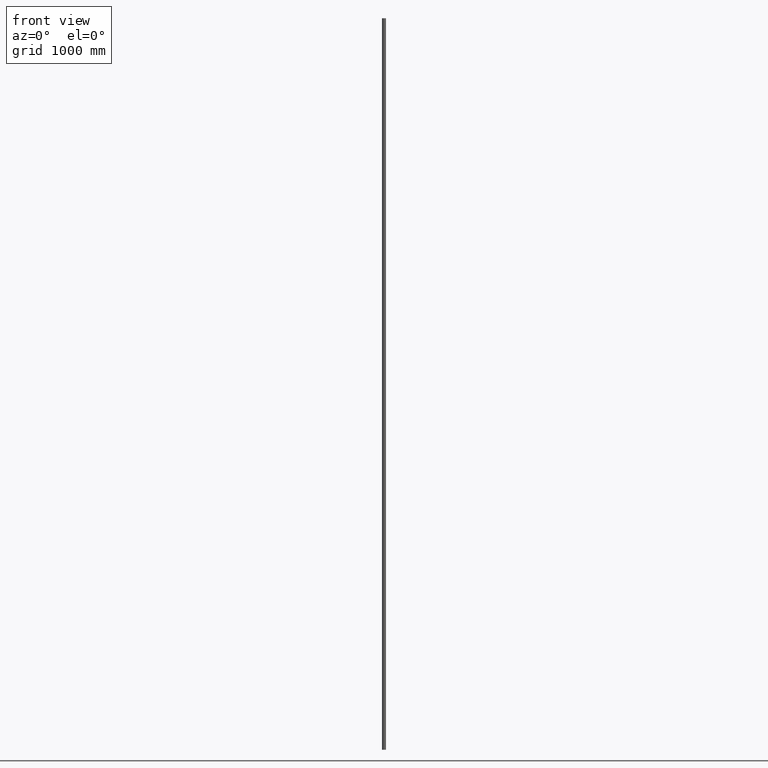
[diagram: clean part render]
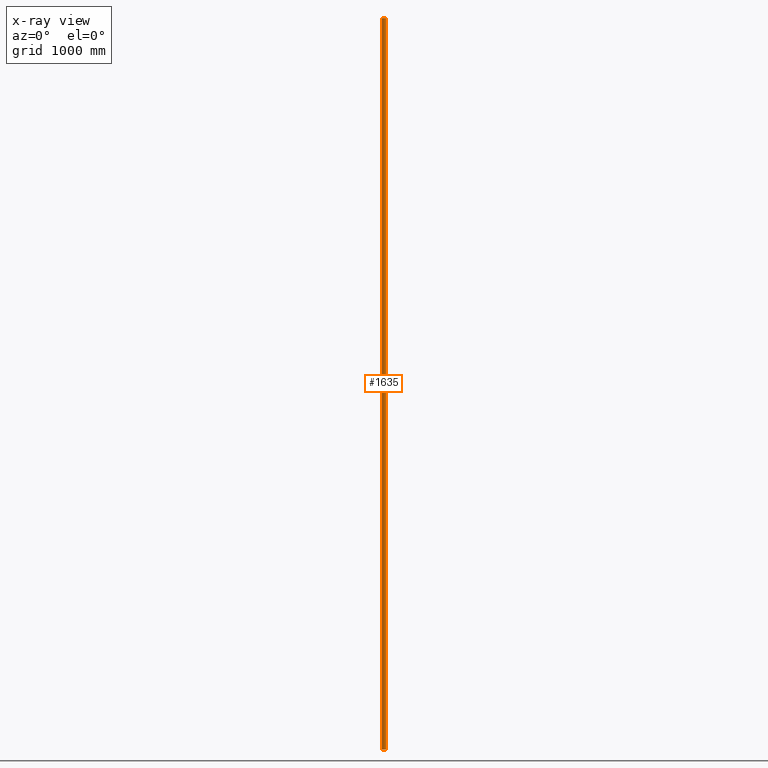
[diagram: x-ray — body ghosted, one internal face saturated and labeled with its STEP entity id]
A machine part, front view, then the same camera in x-ray: the body is ghosted and one INTERNAL B-rep face — a face not visible from any outside direction — is saturated and labeled: STEP entity #1635.
In plain terms, the highlighted cylindrical surface (bore or boss wall) has radius 16.85 mm, axis along (-0, -0, -1).
Its self-contained STEP definition (entity closure, byte-faithful):
#122 = FACE_OUTER_BOUND ( 'NONE', #9750, .T. ) ;
#188 = DIRECTION ( 'NONE',  ( 1.000000000000000000, 0.000000000000000000, 0.000000000000000000 ) ) ;
#461 = CARTESIAN_POINT ( 'NONE',  ( 0.000000000000000000, 0.000000000000000000, 3000.000000000000000 ) ) ;
#500 = CIRCLE ( 'NONE', #2122, 16.85000000000000142 ) ;
#745 = EDGE_LOOP ( 'NONE', ( #4089 ) ) ;
#1363 = ORIENTED_EDGE ( 'NONE', *, *, #5883, .F. ) ;
#1635 = ADVANCED_FACE ( 'NONE', ( #122, #12389 ), #4280, .T. ) ;
#2122 = AXIS2_PLACEMENT_3D ( 'NONE', #3315, #12118, #7174 ) ;
#2277 = CARTESIAN_POINT ( 'NONE',  ( 0.000000000000000000, 0.000000000000000000, 3000.000000000000000 ) ) ;
#3315 = CARTESIAN_POINT ( 'NONE',  ( 0.000000000000000000, 0.000000000000000000, -3000.000000000000000 ) ) ;
#3438 = DIRECTION ( 'NONE',  ( -1.000000000000000000, 0.000000000000000000, 0.000000000000000000 ) ) ;
#3836 = VERTEX_POINT ( 'NONE', #8060 ) ;
#4089 = ORIENTED_EDGE ( 'NONE', *, *, #9473, .T. ) ;
#4280 = CYLINDRICAL_SURFACE ( 'NONE', #4966, 16.85000000000000142 ) ;
#4966 = AXIS2_PLACEMENT_3D ( 'NONE', #461, #10303, #3438 ) ;
#5883 = EDGE_CURVE ( 'NONE', #7057, #7057, #9718, .T. ) ;
#6069 = DIRECTION ( 'NONE',  ( 0.000000000000000000, 0.000000000000000000, 1.000000000000000000 ) ) ;
#7057 = VERTEX_POINT ( 'NONE', #11887 ) ;
#7174 = DIRECTION ( 'NONE',  ( 1.000000000000000000, 0.000000000000000000, 0.000000000000000000 ) ) ;
#8060 = CARTESIAN_POINT ( 'NONE',  ( 16.85000000000000142, 0.000000000000000000, -3000.000000000000000 ) ) ;
#9473 = EDGE_CURVE ( 'NONE', #3836, #3836, #500, .T. ) ;
#9718 = CIRCLE ( 'NONE', #10159, 16.85000000000000142 ) ;
#9750 = EDGE_LOOP ( 'NONE', ( #1363 ) ) ;
#10159 = AXIS2_PLACEMENT_3D ( 'NONE', #2277, #6069, #188 ) ;
#10303 = DIRECTION ( 'NONE',  ( -0.000000000000000000, -0.000000000000000000, -1.000000000000000000 ) ) ;
#11887 = CARTESIAN_POINT ( 'NONE',  ( 16.85000000000000142, 0.000000000000000000, 3000.000000000000000 ) ) ;
#12118 = DIRECTION ( 'NONE',  ( 0.000000000000000000, 0.000000000000000000, 1.000000000000000000 ) ) ;
#12389 = FACE_OUTER_BOUND ( 'NONE', #745, .T. ) ;